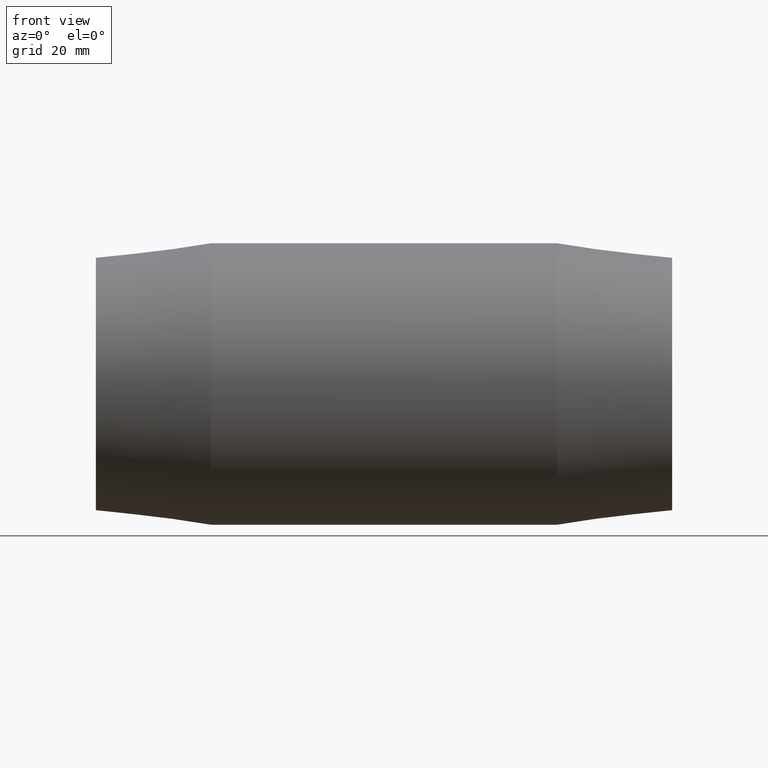
[diagram: clean part render]
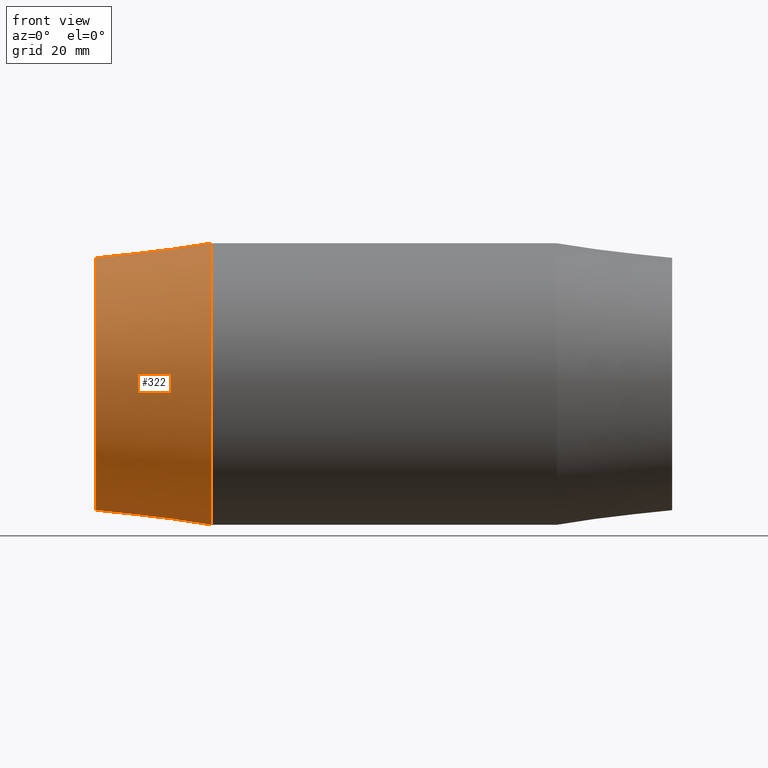
[diagram: same view with one face highlighted and labeled with its STEP entity id]
A machine part, front view. The second image highlights one B-rep face of the part: STEP entity #322.
In plain terms, the highlighted conical surface has half-angle 6.973 deg.
Its self-contained STEP definition (entity closure, byte-faithful):
#16=B_SPLINE_CURVE_WITH_KNOTS('',3,(#558,#559,#560,#561,#562,#563,#564,
#565,#566,#567,#568,#569,#570,#571,#572,#573,#574,#575,#576,#577,#578,#579,
#580,#581,#582,#583,#584,#585,#586,#587,#588,#589,#590,#591),
 .UNSPECIFIED.,.T.,.F.,(4,2,2,2,2,2,2,2,2,2,2,2,2,2,2,2,4),(0.,0.337811599602233,
0.675623199204467,1.0160784905954,1.35653378198633,1.69698907337726,2.03744436476819,
2.37525596437042,2.71306756397265,3.07792415480741,3.44278074564218,3.79904188420463,
4.15530302276708,4.51156416132953,4.86782529989198,5.23268189072674,5.5975384815615),
 .UNSPECIFIED.);
#22=CONICAL_SURFACE('',#378,32.3,6.97276928602646);
#49=FACE_BOUND('',#143,.T.);
#50=FACE_BOUND('',#144,.T.);
#88=FACE_OUTER_BOUND('',#142,.T.);
#142=EDGE_LOOP('',(#280));
#143=EDGE_LOOP('',(#281));
#144=EDGE_LOOP('',(#282));
#156=CIRCLE('',#349,34.);
#170=CIRCLE('',#377,30.6);
#182=VERTEX_POINT('',#557);
#184=VERTEX_POINT('',#595);
#198=VERTEX_POINT('',#637);
#210=EDGE_CURVE('',#182,#182,#16,.T.);
#212=EDGE_CURVE('',#184,#184,#156,.T.);
#226=EDGE_CURVE('',#198,#198,#170,.T.);
#280=ORIENTED_EDGE('',*,*,#212,.F.);
#281=ORIENTED_EDGE('',*,*,#210,.T.);
#282=ORIENTED_EDGE('',*,*,#226,.T.);
#322=ADVANCED_FACE('',(#88,#49,#50),#22,.T.);
#349=AXIS2_PLACEMENT_3D('',#596,#429,#430);
#377=AXIS2_PLACEMENT_3D('',#638,#485,#486);
#378=AXIS2_PLACEMENT_3D('',#639,#487,#488);
#429=DIRECTION('center_axis',(1.,0.,0.));
#430=DIRECTION('ref_axis',(0.,0.,-1.));
#485=DIRECTION('center_axis',(1.,0.,0.));
#486=DIRECTION('ref_axis',(0.,0.,-1.));
#487=DIRECTION('center_axis',(1.,0.,0.));
#488=DIRECTION('ref_axis',(0.,1.,0.));
#557=CARTESIAN_POINT('',(-56.0193723640627,30.8937668489756,9.2495652426104));
#558=CARTESIAN_POINT('Ctrl Pts',(-56.0193723640628,30.8937668489755,9.2495652426104));
#559=CARTESIAN_POINT('Ctrl Pts',(-57.1370828022253,30.7628118903544,9.2103574490276));
#560=CARTESIAN_POINT('Ctrl Pts',(-58.3269819819246,30.6925451678915,8.94691583218011));
#561=CARTESIAN_POINT('Ctrl Pts',(-60.5049146725895,30.6869078098578,7.9645901513814));
#562=CARTESIAN_POINT('Ctrl Pts',(-61.4930091488721,30.7474442654757,7.24586901413925));
#563=CARTESIAN_POINT('Ctrl Pts',(-63.0501510941485,30.8936613098227,5.613217340546));
#564=CARTESIAN_POINT('Ctrl Pts',(-63.7239766369651,30.9889930863502,4.58579673717621));
#565=CARTESIAN_POINT('Ctrl Pts',(-64.6163639991191,31.1290599916174,2.34672905226111));
#566=CARTESIAN_POINT('Ctrl Pts',(-64.8348514015949,31.170557742251,1.1348509713031));
#567=CARTESIAN_POINT('Ctrl Pts',(-64.8348514015949,31.170557742251,-1.1348509713031));
#568=CARTESIAN_POINT('Ctrl Pts',(-64.6163639991191,31.1290599916174,-2.34672905226111));
#569=CARTESIAN_POINT('Ctrl Pts',(-63.7239766369651,30.9889930863502,-4.5857967371762));
#570=CARTESIAN_POINT('Ctrl Pts',(-63.0501510941485,30.8936613098227,-5.613217340546));
#571=CARTESIAN_POINT('Ctrl Pts',(-61.4930091488721,30.7474442654757,-7.24586901413925));
#572=CARTESIAN_POINT('Ctrl Pts',(-60.5049146725895,30.6869078098578,-7.96459015138139));
#573=CARTESIAN_POINT('Ctrl Pts',(-58.3269819819246,30.6925451678915,-8.94691583218011));
#574=CARTESIAN_POINT('Ctrl Pts',(-57.1370828022253,30.7628118903544,-9.2103574490276));
#575=CARTESIAN_POINT('Ctrl Pts',(-54.8121787079285,31.0352059819469,-9.29191198830419));
#576=CARTESIAN_POINT('Ctrl Pts',(-53.5349825359445,31.264864936031,-9.08010451579439));
#577=CARTESIAN_POINT('Ctrl Pts',(-51.1964982205141,31.8151913905117,-8.15080568234896));
#578=CARTESIAN_POINT('Ctrl Pts',(-50.1339402128853,32.1313570763322,-7.43384981248541));
#579=CARTESIAN_POINT('Ctrl Pts',(-48.4743767580176,32.6748035454698,-5.78205907933334));
#580=CARTESIAN_POINT('Ctrl Pts',(-47.7576175647788,32.9397514985168,-4.74260902999342));
#581=CARTESIAN_POINT('Ctrl Pts',(-46.8004727373702,33.3067315305941,-2.445730111192));
#582=CARTESIAN_POINT('Ctrl Pts',(-46.5606831557212,33.4055279593722,-1.18753712854151));
#583=CARTESIAN_POINT('Ctrl Pts',(-46.5606831557212,33.4055279593722,1.1875371285415));
#584=CARTESIAN_POINT('Ctrl Pts',(-46.8004727373702,33.3067315305941,2.44573011119199));
#585=CARTESIAN_POINT('Ctrl Pts',(-47.7576175647788,32.9397514985168,4.74260902999342));
#586=CARTESIAN_POINT('Ctrl Pts',(-48.4743767580176,32.6748035454698,5.78205907933333));
#587=CARTESIAN_POINT('Ctrl Pts',(-50.1339402128853,32.1313570763322,7.43384981248541));
#588=CARTESIAN_POINT('Ctrl Pts',(-51.196498220514,31.8151913905117,8.15080568234896));
#589=CARTESIAN_POINT('Ctrl Pts',(-53.5349825359445,31.264864936031,9.08010451579439));
#590=CARTESIAN_POINT('Ctrl Pts',(-54.8121787079285,31.0352059819469,9.29191198830419));
#591=CARTESIAN_POINT('Ctrl Pts',(-56.0193723640628,30.8937668489755,9.24956524261039));
#595=CARTESIAN_POINT('',(-41.7,34.,0.));
#596=CARTESIAN_POINT('Origin',(-41.7,0.,0.));
#637=CARTESIAN_POINT('',(-69.5,30.6,0.));
#638=CARTESIAN_POINT('Origin',(-69.5,0.,0.));
#639=CARTESIAN_POINT('Origin',(-55.6,0.,0.));